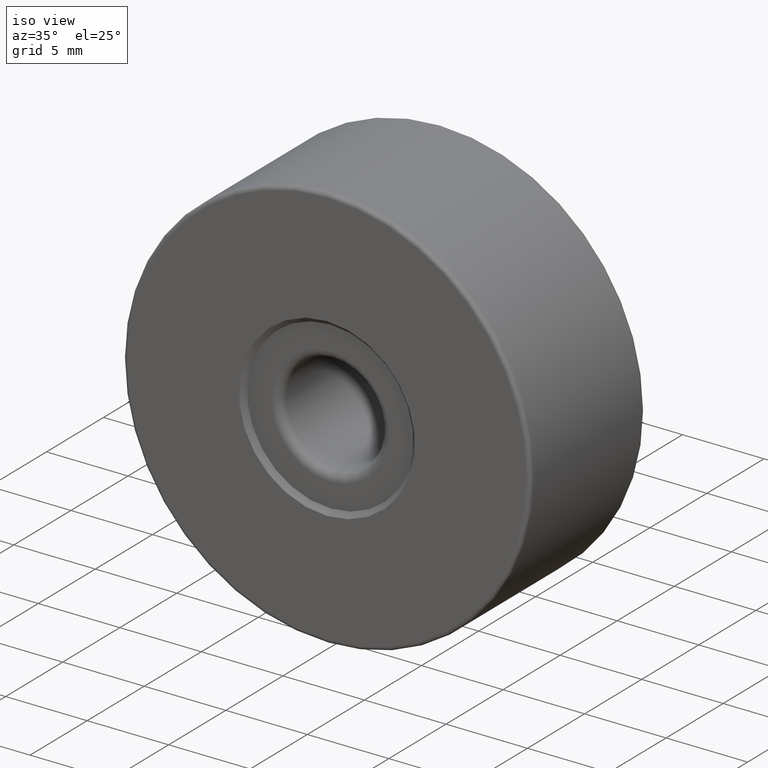
[diagram: clean part render]
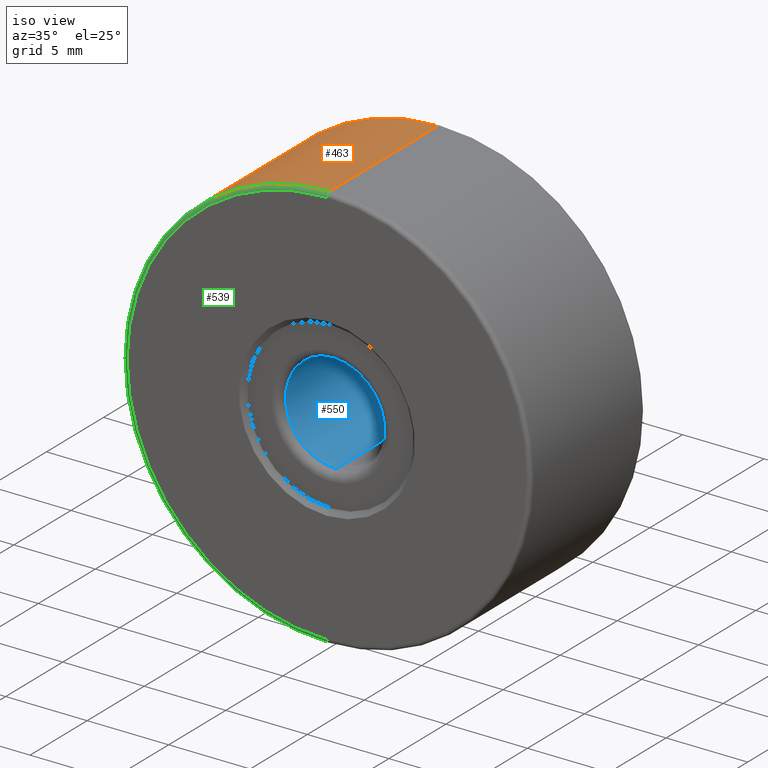
[diagram: same view with three faces highlighted in distinct colors, each labeled with its STEP entity id]
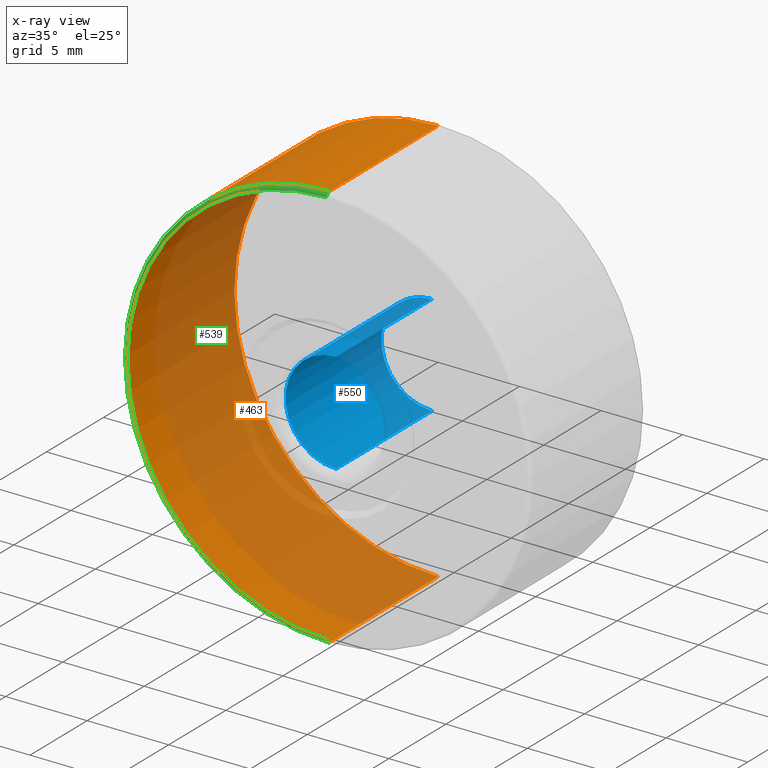
[diagram: x-ray of the same camera — body ghosted, the three highlighted faces saturated]
A machine part, iso view with three faces highlighted in distinct colors.
The next image is the same camera in x-ray (body ghosted, the three faces saturated) — at least one of them is partly hidden behind the body in this view.
Their STEP definitions:

[orange] entity #463 — the highlighted cylindrical surface (partial cylindrical patch) has radius 12.5 mm, axis along (-0, -1, -0).
#16 = CARTESIAN_POINT ( 'NONE',  ( -4.682026255059964726, -6.344975976998274980, 12.50000000000000000 ) ) ;
#26 = CARTESIAN_POINT ( 'NONE',  ( -4.682026255059962949, 3.405024023001725020, 37.50000000000000711 ) ) ;
#37 = CARTESIAN_POINT ( 'NONE',  ( -4.682026255059962949, -6.344975976998274980, 37.50000000000000711 ) ) ;
#51 = VERTEX_POINT ( 'NONE', #37 ) ;
#57 = CARTESIAN_POINT ( 'NONE',  ( -4.682026255059962949, 3.155024023001725020, 12.50000000000000000 ) ) ;
#70 = CARTESIAN_POINT ( 'NONE',  ( -4.682026255059964726, -6.344975976998274980, 25.00000000000000000 ) ) ;
#83 = DIRECTION ( 'NONE',  ( 0.0000000000000000000, 0.0000000000000000000, 1.000000000000000000 ) ) ;
#87 = VERTEX_POINT ( 'NONE', #16 ) ;
#94 = ORIENTED_EDGE ( 'NONE', *, *, #296, .F. ) ;
#104 = DIRECTION ( 'NONE',  ( -0.0000000000000000000, -1.000000000000000000, -0.0000000000000000000 ) ) ;
#112 = CARTESIAN_POINT ( 'NONE',  ( -4.682026255059964726, 3.405024023001725020, 25.00000000000000000 ) ) ;
#117 = CIRCLE ( 'NONE', #396, 12.50000000000000355 ) ;
#154 = EDGE_CURVE ( 'NONE', #423, #428, #117, .T. ) ;
#196 = AXIS2_PLACEMENT_3D ( 'NONE', #70, #494, #346 ) ;
#213 = EDGE_CURVE ( 'NONE', #428, #87, #279, .T. ) ;
#219 = LINE ( 'NONE', #26, #589 ) ;
#260 = FACE_OUTER_BOUND ( 'NONE', #431, .T. ) ;
#267 = AXIS2_PLACEMENT_3D ( 'NONE', #112, #300, #545 ) ;
#279 = LINE ( 'NONE', #489, #415 ) ;
#296 = EDGE_CURVE ( 'NONE', #423, #51, #219, .T. ) ;
#300 = DIRECTION ( 'NONE',  ( -0.0000000000000000000, -1.000000000000000000, -0.0000000000000000000 ) ) ;
#305 = CIRCLE ( 'NONE', #196, 12.50000000000000355 ) ;
#319 = DIRECTION ( 'NONE',  ( -0.0000000000000000000, -1.000000000000000000, -0.0000000000000000000 ) ) ;
#338 = ORIENTED_EDGE ( 'NONE', *, *, #455, .T. ) ;
#346 = DIRECTION ( 'NONE',  ( 0.0000000000000000000, 0.0000000000000000000, 1.000000000000000000 ) ) ;
#358 = CYLINDRICAL_SURFACE ( 'NONE', #267, 12.50000000000000000 ) ;
#391 = CARTESIAN_POINT ( 'NONE',  ( -4.682026255059964726, 3.155024023001725020, 37.50000000000000711 ) ) ;
#396 = AXIS2_PLACEMENT_3D ( 'NONE', #414, #319, #83 ) ;
#414 = CARTESIAN_POINT ( 'NONE',  ( -4.682026255059964726, 3.155024023001725020, 25.00000000000000000 ) ) ;
#415 = VECTOR ( 'NONE', #104, 1000.000000000000000 ) ;
#423 = VERTEX_POINT ( 'NONE', #391 ) ;
#428 = VERTEX_POINT ( 'NONE', #57 ) ;
#431 = EDGE_LOOP ( 'NONE', ( #94, #598, #608, #338 ) ) ;
#455 = EDGE_CURVE ( 'NONE', #87, #51, #305, .T. ) ;
#457 = DIRECTION ( 'NONE',  ( -0.0000000000000000000, -1.000000000000000000, -0.0000000000000000000 ) ) ;
#463 = ADVANCED_FACE ( 'NONE', ( #260 ), #358, .T. ) ;
#489 = CARTESIAN_POINT ( 'NONE',  ( -4.682026255059964726, 3.405024023001725020, 12.50000000000000000 ) ) ;
#494 = DIRECTION ( 'NONE',  ( 0.0000000000000000000, 1.000000000000000000, 0.0000000000000000000 ) ) ;
#545 = DIRECTION ( 'NONE',  ( 0.0000000000000000000, 0.0000000000000000000, -1.000000000000000000 ) ) ;
#589 = VECTOR ( 'NONE', #457, 1000.000000000000000 ) ;
#598 = ORIENTED_EDGE ( 'NONE', *, *, #154, .T. ) ;
#608 = ORIENTED_EDGE ( 'NONE', *, *, #213, .T. ) ;

[blue] entity #550 — the highlighted cylindrical surface (partial cylindrical patch) has radius 3.1 mm, axis along (-0, 1, -0).
#9 = CARTESIAN_POINT ( 'NONE',  ( -4.682026255059964726, -5.794975976998276046, 28.10000000000000142 ) ) ;
#13 = CARTESIAN_POINT ( 'NONE',  ( -4.682026255059964726, -6.594975976998274980, 28.10000000000000142 ) ) ;
#45 = AXIS2_PLACEMENT_3D ( 'NONE', #356, #548, #120 ) ;
#58 = EDGE_CURVE ( 'NONE', #413, #143, #59, .T. ) ;
#59 = LINE ( 'NONE', #13, #266 ) ;
#67 = VECTOR ( 'NONE', #241, 1000.000000000000000 ) ;
#69 = DIRECTION ( 'NONE',  ( 0.0000000000000000000, 0.0000000000000000000, 1.000000000000000000 ) ) ;
#97 = CARTESIAN_POINT ( 'NONE',  ( -4.682026255059964726, -6.594975976998274980, 21.90000000000000213 ) ) ;
#109 = CYLINDRICAL_SURFACE ( 'NONE', #137, 3.099999999999998757 ) ;
#116 = CARTESIAN_POINT ( 'NONE',  ( -4.682026255059964726, -5.794975976998276046, 25.00000000000000000 ) ) ;
#120 = DIRECTION ( 'NONE',  ( 0.0000000000000000000, 0.0000000000000000000, 1.000000000000000000 ) ) ;
#137 = AXIS2_PLACEMENT_3D ( 'NONE', #156, #350, #69 ) ;
#143 = VERTEX_POINT ( 'NONE', #561 ) ;
#144 = CARTESIAN_POINT ( 'NONE',  ( -4.682026255059964726, -5.794975976998276046, 21.90000000000000213 ) ) ;
#156 = CARTESIAN_POINT ( 'NONE',  ( -4.682026255059964726, -6.594975976998274980, 25.00000000000000000 ) ) ;
#204 = DIRECTION ( 'NONE',  ( -0.0000000000000000000, 1.000000000000000000, -0.0000000000000000000 ) ) ;
#207 = CIRCLE ( 'NONE', #45, 3.099999999999998757 ) ;
#235 = ORIENTED_EDGE ( 'NONE', *, *, #348, .T. ) ;
#241 = DIRECTION ( 'NONE',  ( -0.0000000000000000000, 1.000000000000000000, -0.0000000000000000000 ) ) ;
#266 = VECTOR ( 'NONE', #204, 1000.000000000000000 ) ;
#289 = LINE ( 'NONE', #97, #67 ) ;
#301 = ORIENTED_EDGE ( 'NONE', *, *, #471, .T. ) ;
#316 = VERTEX_POINT ( 'NONE', #479 ) ;
#323 = AXIS2_PLACEMENT_3D ( 'NONE', #116, #587, #538 ) ;
#336 = ORIENTED_EDGE ( 'NONE', *, *, #462, .T. ) ;
#348 = EDGE_CURVE ( 'NONE', #422, #316, #289, .T. ) ;
#350 = DIRECTION ( 'NONE',  ( -0.0000000000000000000, 1.000000000000000000, -0.0000000000000000000 ) ) ;
#356 = CARTESIAN_POINT ( 'NONE',  ( -4.682026255059964726, 2.605024023001724753, 25.00000000000000000 ) ) ;
#377 = CIRCLE ( 'NONE', #323, 3.099999999999998757 ) ;
#413 = VERTEX_POINT ( 'NONE', #9 ) ;
#422 = VERTEX_POINT ( 'NONE', #144 ) ;
#462 = EDGE_CURVE ( 'NONE', #413, #422, #377, .T. ) ;
#469 = EDGE_LOOP ( 'NONE', ( #336, #235, #301, #597 ) ) ;
#471 = EDGE_CURVE ( 'NONE', #316, #143, #207, .T. ) ;
#479 = CARTESIAN_POINT ( 'NONE',  ( -4.682026255059964726, 2.605024023001724753, 21.90000000000000213 ) ) ;
#492 = FACE_OUTER_BOUND ( 'NONE', #469, .T. ) ;
#538 = DIRECTION ( 'NONE',  ( 0.0000000000000000000, 0.0000000000000000000, -1.000000000000000000 ) ) ;
#548 = DIRECTION ( 'NONE',  ( 0.0000000000000000000, 1.000000000000000000, 0.0000000000000000000 ) ) ;
#550 = ADVANCED_FACE ( 'NONE', ( #492 ), #109, .F. ) ;
#561 = CARTESIAN_POINT ( 'NONE',  ( -4.682026255059964726, 2.605024023001724753, 28.10000000000000142 ) ) ;
#587 = DIRECTION ( 'NONE',  ( 0.0000000000000000000, -1.000000000000000000, 0.0000000000000000000 ) ) ;
#597 = ORIENTED_EDGE ( 'NONE', *, *, #58, .F. ) ;

[green] entity #539 — the highlighted toroidal blend (fillet) surface has major radius 12.25 mm and minor (blend) radius 0.25 mm.
#16 = CARTESIAN_POINT ( 'NONE',  ( -4.682026255059964726, -6.344975976998274980, 12.50000000000000000 ) ) ;
#21 = CARTESIAN_POINT ( 'NONE',  ( -4.682026255059964726, -6.344975976998274980, 25.00000000000000000 ) ) ;
#28 = DIRECTION ( 'NONE',  ( -1.000000000000000000, 0.0000000000000000000, 0.0000000000000000000 ) ) ;
#29 = ORIENTED_EDGE ( 'NONE', *, *, #302, .F. ) ;
#37 = CARTESIAN_POINT ( 'NONE',  ( -4.682026255059962949, -6.344975976998274980, 37.50000000000000711 ) ) ;
#39 = EDGE_CURVE ( 'NONE', #326, #51, #205, .T. ) ;
#46 = TOROIDAL_SURFACE ( 'NONE', #555, 12.25000000000000000, 0.2500000000000000000 ) ;
#51 = VERTEX_POINT ( 'NONE', #37 ) ;
#55 = VERTEX_POINT ( 'NONE', #537 ) ;
#56 = CIRCLE ( 'NONE', #224, 0.2500000000000002220 ) ;
#70 = CARTESIAN_POINT ( 'NONE',  ( -4.682026255059964726, -6.344975976998274980, 25.00000000000000000 ) ) ;
#82 = EDGE_LOOP ( 'NONE', ( #159, #29, #472, #518 ) ) ;
#87 = VERTEX_POINT ( 'NONE', #16 ) ;
#111 = DIRECTION ( 'NONE',  ( 0.0000000000000000000, 0.0000000000000000000, -1.000000000000000000 ) ) ;
#159 = ORIENTED_EDGE ( 'NONE', *, *, #228, .F. ) ;
#167 = DIRECTION ( 'NONE',  ( 0.0000000000000000000, 0.0000000000000000000, 1.000000000000000000 ) ) ;
#196 = AXIS2_PLACEMENT_3D ( 'NONE', #70, #494, #346 ) ;
#205 = CIRCLE ( 'NONE', #534, 0.2500000000000002220 ) ;
#224 = AXIS2_PLACEMENT_3D ( 'NONE', #541, #249, #111 ) ;
#228 = EDGE_CURVE ( 'NONE', #55, #87, #56, .T. ) ;
#249 = DIRECTION ( 'NONE',  ( 1.000000000000000000, -0.0000000000000000000, 1.224646799147353207E-16 ) ) ;
#262 = FACE_OUTER_BOUND ( 'NONE', #82, .T. ) ;
#298 = DIRECTION ( 'NONE',  ( 0.0000000000000000000, 1.000000000000000000, 0.0000000000000000000 ) ) ;
#302 = EDGE_CURVE ( 'NONE', #326, #55, #405, .T. ) ;
#305 = CIRCLE ( 'NONE', #196, 12.50000000000000355 ) ;
#326 = VERTEX_POINT ( 'NONE', #435 ) ;
#346 = DIRECTION ( 'NONE',  ( 0.0000000000000000000, 0.0000000000000000000, 1.000000000000000000 ) ) ;
#405 = CIRCLE ( 'NONE', #488, 12.25000000000000355 ) ;
#409 = CARTESIAN_POINT ( 'NONE',  ( -4.682026255059964726, -6.594975976998274980, 25.00000000000000000 ) ) ;
#435 = CARTESIAN_POINT ( 'NONE',  ( -4.682026255059964726, -6.594975976998274980, 37.25000000000000711 ) ) ;
#442 = DIRECTION ( 'NONE',  ( 0.0000000000000000000, 0.0000000000000000000, 1.000000000000000000 ) ) ;
#455 = EDGE_CURVE ( 'NONE', #87, #51, #305, .T. ) ;
#460 = CARTESIAN_POINT ( 'NONE',  ( -4.682026255059964726, -6.344975976998274980, 37.25000000000000711 ) ) ;
#472 = ORIENTED_EDGE ( 'NONE', *, *, #39, .T. ) ;
#488 = AXIS2_PLACEMENT_3D ( 'NONE', #409, #592, #167 ) ;
#494 = DIRECTION ( 'NONE',  ( 0.0000000000000000000, 1.000000000000000000, 0.0000000000000000000 ) ) ;
#518 = ORIENTED_EDGE ( 'NONE', *, *, #455, .F. ) ;
#521 = DIRECTION ( 'NONE',  ( 0.0000000000000000000, 0.0000000000000000000, 1.000000000000000000 ) ) ;
#534 = AXIS2_PLACEMENT_3D ( 'NONE', #460, #28, #521 ) ;
#537 = CARTESIAN_POINT ( 'NONE',  ( -4.682026255059962949, -6.594975976998274980, 12.75000000000000178 ) ) ;
#539 = ADVANCED_FACE ( 'NONE', ( #262 ), #46, .T. ) ;
#541 = CARTESIAN_POINT ( 'NONE',  ( -4.682026255059962949, -6.344975976998274980, 12.75000000000000178 ) ) ;
#555 = AXIS2_PLACEMENT_3D ( 'NONE', #21, #298, #442 ) ;
#592 = DIRECTION ( 'NONE',  ( -0.0000000000000000000, -1.000000000000000000, -0.0000000000000000000 ) ) ;